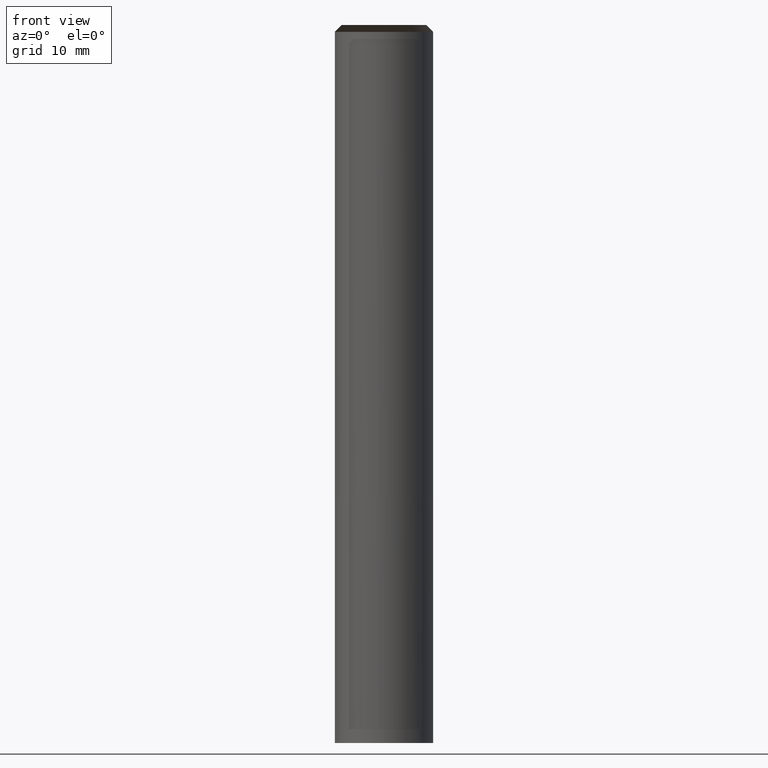
[diagram: clean part render]
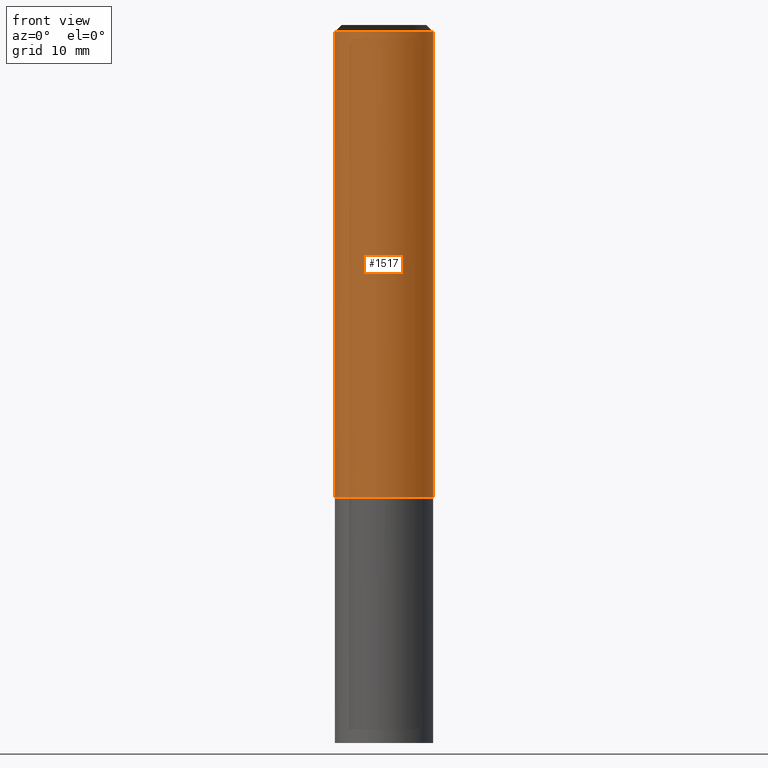
[diagram: same view with one face highlighted and labeled with its STEP entity id]
A machine part, front view. The second image highlights one B-rep face of the part: STEP entity #1517.
In plain terms, the highlighted face is a freeform B-spline surface patch.
Its self-contained STEP definition (entity closure, byte-faithful):
#1267=CARTESIAN_POINT('',(5.0,0.0,0.0));
#1271=CARTESIAN_POINT('',(-5.0,0.0,0.0));
#1275=CARTESIAN_POINT('',(-5.0,-5.0,0.0));
#1276=CARTESIAN_POINT('',(0.0,-5.0,0.0));
#1277=CARTESIAN_POINT('',(5.0,-5.0,0.0));
#1278=CARTESIAN_POINT('',(5.0,0.0,47.3));
#1282=CARTESIAN_POINT('',(-5.0,0.0,47.3));
#1289=CARTESIAN_POINT('',(-5.0,-5.0,47.3));
#1290=CARTESIAN_POINT('',(0.0,-5.0,47.3));
#1291=CARTESIAN_POINT('',(5.0,-5.0,47.3));
#1498=(
BOUNDED_SURFACE()
B_SPLINE_SURFACE(1,2,(
(#1271,#1275,#1276,#1277,#1267),
(#1282,#1289,#1290,#1291,#1278)
), .UNSPECIFIED.,.F.,.F.,.F.)
B_SPLINE_SURFACE_WITH_KNOTS((2,2),(3,2,3),(
0.0,1.0),(
0.0,0.5,1.0), .UNSPECIFIED.)
GEOMETRIC_REPRESENTATION_ITEM()
RATIONAL_B_SPLINE_SURFACE(((1.0,0.707106781187,1.0,0.707106781187,1.0),
(1.0,0.707106781187,1.0,0.707106781187,1.0)
))
REPRESENTATION_ITEM('')
SURFACE()
);
#1499=(
BOUNDED_CURVE()
B_SPLINE_CURVE(2,(#1267,#1277,#1276,#1275,#1271),.UNSPECIFIED.,.F.,.F.)
B_SPLINE_CURVE_WITH_KNOTS((3,2,3),
(0.0,0.5,1.0),.UNSPECIFIED.)
CURVE()
GEOMETRIC_REPRESENTATION_ITEM()
RATIONAL_B_SPLINE_CURVE((1.0,0.707106781187,1.0,0.707106781187,1.0))
REPRESENTATION_ITEM('')
);
#1500=(
BOUNDED_CURVE()
B_SPLINE_CURVE(1,(#1271,#1282),.UNSPECIFIED.,.F.,.F.)
B_SPLINE_CURVE_WITH_KNOTS((2,2),
(0.0,1.0),.UNSPECIFIED.)
CURVE()
GEOMETRIC_REPRESENTATION_ITEM()
RATIONAL_B_SPLINE_CURVE((1.0,1.0))
REPRESENTATION_ITEM('')
);
#1501=(
BOUNDED_CURVE()
B_SPLINE_CURVE(2,(#1282,#1289,#1290,#1291,#1278),.UNSPECIFIED.,.F.,.F.)
B_SPLINE_CURVE_WITH_KNOTS((3,2,3),
(0.0,0.5,1.0),.UNSPECIFIED.)
CURVE()
GEOMETRIC_REPRESENTATION_ITEM()
RATIONAL_B_SPLINE_CURVE((1.0,0.707106781187,1.0,0.707106781187,1.0))
REPRESENTATION_ITEM('')
);
#1502=(
BOUNDED_CURVE()
B_SPLINE_CURVE(1,(#1278,#1267),.UNSPECIFIED.,.F.,.F.)
B_SPLINE_CURVE_WITH_KNOTS((2,2),
(0.0,1.0),.UNSPECIFIED.)
CURVE()
GEOMETRIC_REPRESENTATION_ITEM()
RATIONAL_B_SPLINE_CURVE((1.0,1.0))
REPRESENTATION_ITEM('')
);
#1503=VERTEX_POINT('',#1267);
#1504=VERTEX_POINT('',#1271);
#1505=VERTEX_POINT('',#1278);
#1506=VERTEX_POINT('',#1282);
#1507=EDGE_CURVE('',#1503,#1504,#1499,.T.);
#1508=EDGE_CURVE('',#1504,#1506,#1500,.T.);
#1509=EDGE_CURVE('',#1506,#1505,#1501,.T.);
#1510=EDGE_CURVE('',#1505,#1503,#1502,.T.);
#1511=ORIENTED_EDGE('',*,*,#1507,.T.);
#1512=ORIENTED_EDGE('',*,*,#1508,.T.);
#1513=ORIENTED_EDGE('',*,*,#1509,.T.);
#1514=ORIENTED_EDGE('',*,*,#1510,.T.);
#1515=EDGE_LOOP('',(#1511,#1512,#1513,#1514));
#1516=FACE_OUTER_BOUND('',#1515,.T.);
#1517=ADVANCED_FACE('',(#1516),#1498,.T.);